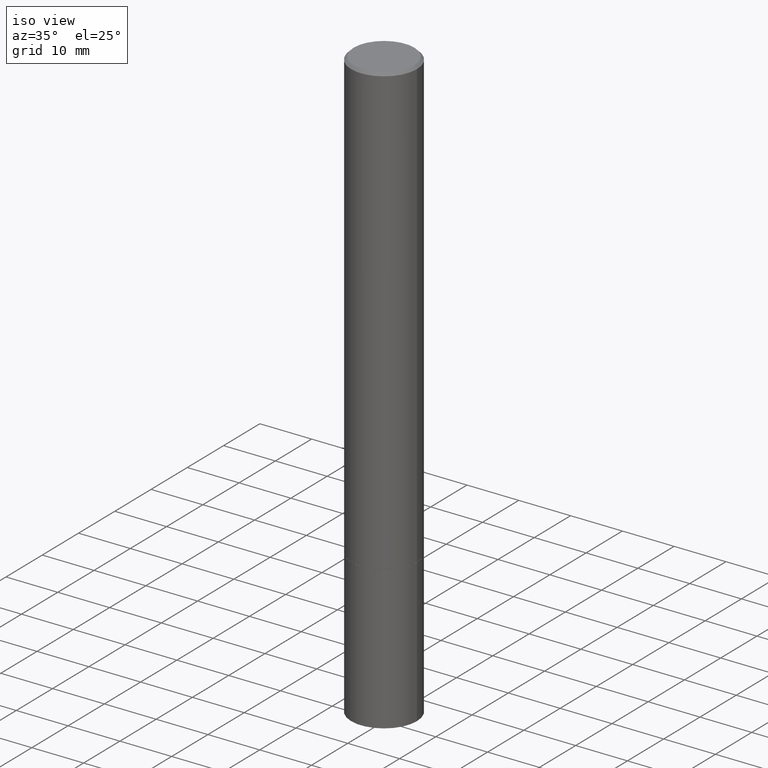
[diagram: clean part render]
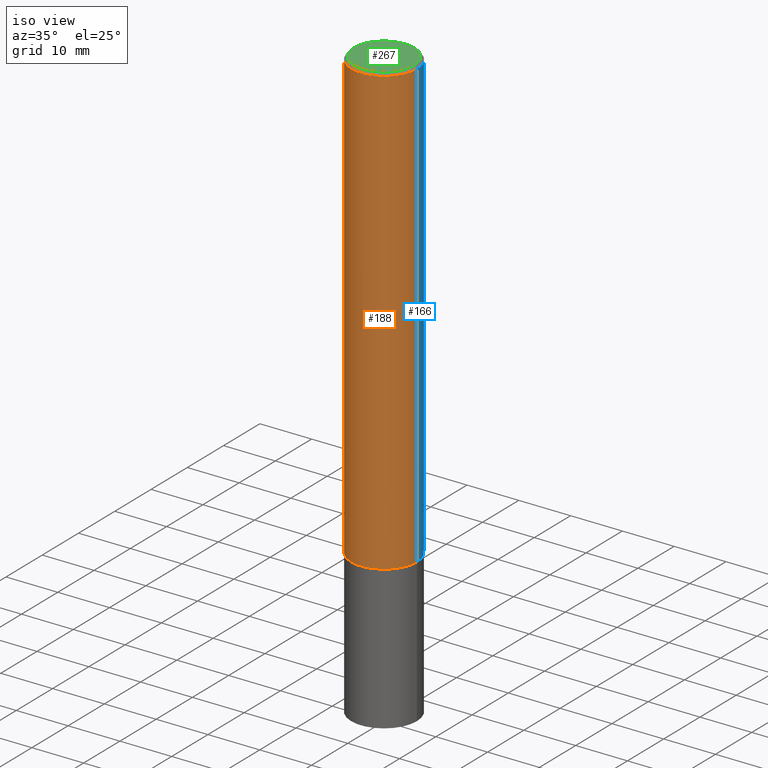
[diagram: same view with three faces highlighted in distinct colors, each labeled with its STEP entity id]
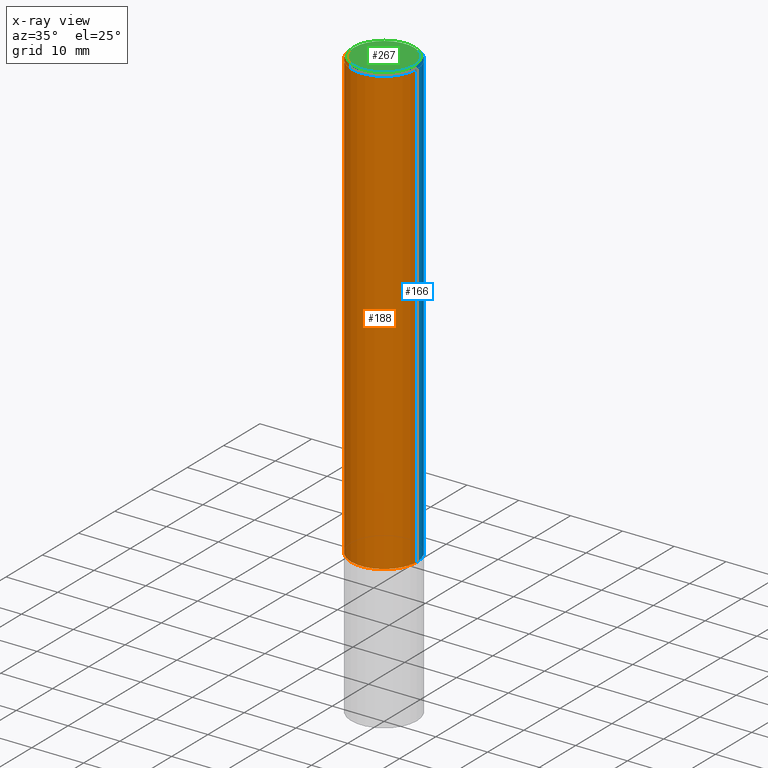
[diagram: x-ray of the same camera — body ghosted, the three highlighted faces saturated]
A machine part, iso view with three faces highlighted in distinct colors.
The next image is the same camera in x-ray (body ghosted, the three faces saturated) — at least one of them is partly hidden behind the body in this view.
Their STEP definitions:

[orange] entity #188 — the highlighted cylindrical surface (partial cylindrical patch) has radius 6.35 mm, axis along (-0, 0, 1).
#3 = VERTEX_POINT ( 'NONE', #93 ) ;
#30 = DIRECTION ( 'NONE',  ( 1.000000000000000000, -6.982962677686266711E-15, 0.000000000000000000 ) ) ;
#59 = DIRECTION ( 'NONE',  ( 1.000000000000000000, -6.982962677686270655E-15, 0.000000000000000000 ) ) ;
#62 = FACE_OUTER_BOUND ( 'NONE', #200, .T. ) ;
#93 = CARTESIAN_POINT ( 'NONE',  ( 0.2499999999999995837, -1.784954126219743033E-15, -0.02000000000000006287 ) ) ;
#114 = ORIENTED_EDGE ( 'NONE', *, *, #163, .T. ) ;
#124 = DIRECTION ( 'NONE',  ( -2.445468806185136597E-29, 3.491481338843145583E-15, 1.000000000000000000 ) ) ;
#140 = EDGE_CURVE ( 'NONE', #258, #249, #311, .T. ) ;
#147 = ORIENTED_EDGE ( 'NONE', *, *, #336, .F. ) ;
#149 = CARTESIAN_POINT ( 'NONE',  ( 8.329266753866575132E-29, -1.189198544009975405E-14, -3.406000000000000139 ) ) ;
#159 = VERTEX_POINT ( 'NONE', #226 ) ;
#162 = CIRCLE ( 'NONE', #306, 0.2500000000000000000 ) ;
#163 = EDGE_CURVE ( 'NONE', #258, #159, #162, .T. ) ;
#175 = CARTESIAN_POINT ( 'NONE',  ( 0.000000000000000000, 0.000000000000000000, 0.000000000000000000 ) ) ;
#178 = CARTESIAN_POINT ( 'NONE',  ( 4.890937612370288923E-31, -6.982962677686312563E-17, -0.02000000000000006287 ) ) ;
#188 = ADVANCED_FACE ( 'NONE', ( #62 ), #363, .T. ) ;
#200 = EDGE_LOOP ( 'NONE', ( #227, #114, #231, #147 ) ) ;
#201 = CARTESIAN_POINT ( 'NONE',  ( -0.2499999999999998057, 1.776356839400249084E-15, -1.229733772563725465E-29 ) ) ;
#202 = LINE ( 'NONE', #312, #339 ) ;
#208 = VECTOR ( 'NONE', #309, 39.37007874015748143 ) ;
#226 = CARTESIAN_POINT ( 'NONE',  ( 0.2500000000000000000, -1.363772610952132230E-14, -3.406000000000000139 ) ) ;
#227 = ORIENTED_EDGE ( 'NONE', *, *, #140, .F. ) ;
#228 = AXIS2_PLACEMENT_3D ( 'NONE', #175, #342, #283 ) ;
#231 = ORIENTED_EDGE ( 'NONE', *, *, #347, .T. ) ;
#240 = CARTESIAN_POINT ( 'NONE',  ( -0.2500000000000000555, -4.204550694038052687E-15, -3.406000000000000139 ) ) ;
#249 = VERTEX_POINT ( 'NONE', #265 ) ;
#258 = VERTEX_POINT ( 'NONE', #240 ) ;
#265 = CARTESIAN_POINT ( 'NONE',  ( -0.2499999999999995837, 1.675911042644700618E-15, -0.02000000000000006287 ) ) ;
#279 = DIRECTION ( 'NONE',  ( -2.445468806185136877E-29, 3.491481338843145188E-15, 1.000000000000000000 ) ) ;
#283 = DIRECTION ( 'NONE',  ( 1.000000000000000000, -6.982962677686266711E-15, 4.876176775795935793E-29 ) ) ;
#298 = AXIS2_PLACEMENT_3D ( 'NONE', #178, #124, #30 ) ;
#305 = DIRECTION ( 'NONE',  ( -2.445468806185136597E-29, 3.491481338843145583E-15, 1.000000000000000000 ) ) ;
#306 = AXIS2_PLACEMENT_3D ( 'NONE', #149, #305, #59 ) ;
#309 = DIRECTION ( 'NONE',  ( -2.445468806185136877E-29, 3.491481338843145188E-15, 1.000000000000000000 ) ) ;
#311 = LINE ( 'NONE', #201, #208 ) ;
#312 = CARTESIAN_POINT ( 'NONE',  ( 0.2499999999999998057, -1.745740669421565297E-15, 1.219044193948982967E-29 ) ) ;
#336 = EDGE_CURVE ( 'NONE', #249, #3, #358, .T. ) ;
#339 = VECTOR ( 'NONE', #279, 39.37007874015748143 ) ;
#342 = DIRECTION ( 'NONE',  ( -2.445468806185136597E-29, 3.491481338843145583E-15, 1.000000000000000000 ) ) ;
#347 = EDGE_CURVE ( 'NONE', #159, #3, #202, .T. ) ;
#358 = CIRCLE ( 'NONE', #298, 0.2499999999999995837 ) ;
#363 = CYLINDRICAL_SURFACE ( 'NONE', #228, 0.2499999999999998057 ) ;

[blue] entity #166 — the highlighted cylindrical surface (partial cylindrical patch) has radius 6.35 mm, axis along (-0, 0, 1).
#3 = VERTEX_POINT ( 'NONE', #93 ) ;
#17 = AXIS2_PLACEMENT_3D ( 'NONE', #211, #206, #177 ) ;
#24 = DIRECTION ( 'NONE',  ( -2.445468806185136597E-29, 3.491481338843145583E-15, 1.000000000000000000 ) ) ;
#27 = ORIENTED_EDGE ( 'NONE', *, *, #215, .F. ) ;
#29 = CIRCLE ( 'NONE', #142, 0.2500000000000000000 ) ;
#31 = ORIENTED_EDGE ( 'NONE', *, *, #321, .T. ) ;
#54 = CARTESIAN_POINT ( 'NONE',  ( 0.000000000000000000, 0.000000000000000000, 0.000000000000000000 ) ) ;
#72 = DIRECTION ( 'NONE',  ( 1.000000000000000000, -6.982962677686270655E-15, 0.000000000000000000 ) ) ;
#93 = CARTESIAN_POINT ( 'NONE',  ( 0.2499999999999995837, -1.784954126219743033E-15, -0.02000000000000006287 ) ) ;
#122 = FACE_OUTER_BOUND ( 'NONE', #195, .T. ) ;
#136 = CIRCLE ( 'NONE', #17, 0.2499999999999995837 ) ;
#140 = EDGE_CURVE ( 'NONE', #258, #249, #311, .T. ) ;
#142 = AXIS2_PLACEMENT_3D ( 'NONE', #160, #295, #72 ) ;
#146 = DIRECTION ( 'NONE',  ( 1.000000000000000000, -6.982962677686266711E-15, 4.876176775795935793E-29 ) ) ;
#159 = VERTEX_POINT ( 'NONE', #226 ) ;
#160 = CARTESIAN_POINT ( 'NONE',  ( 8.329266753866575132E-29, -1.189198544009975405E-14, -3.406000000000000139 ) ) ;
#166 = ADVANCED_FACE ( 'NONE', ( #122 ), #281, .T. ) ;
#177 = DIRECTION ( 'NONE',  ( 1.000000000000000000, -6.982962677686266711E-15, 0.000000000000000000 ) ) ;
#195 = EDGE_LOOP ( 'NONE', ( #31, #282, #27, #340 ) ) ;
#201 = CARTESIAN_POINT ( 'NONE',  ( -0.2499999999999998057, 1.776356839400249084E-15, -1.229733772563725465E-29 ) ) ;
#202 = LINE ( 'NONE', #312, #339 ) ;
#206 = DIRECTION ( 'NONE',  ( -2.445468806185136597E-29, 3.491481338843145583E-15, 1.000000000000000000 ) ) ;
#208 = VECTOR ( 'NONE', #309, 39.37007874015748143 ) ;
#211 = CARTESIAN_POINT ( 'NONE',  ( 4.890937612370288923E-31, -6.982962677686312563E-17, -0.02000000000000006287 ) ) ;
#215 = EDGE_CURVE ( 'NONE', #3, #249, #136, .T. ) ;
#226 = CARTESIAN_POINT ( 'NONE',  ( 0.2500000000000000000, -1.363772610952132230E-14, -3.406000000000000139 ) ) ;
#240 = CARTESIAN_POINT ( 'NONE',  ( -0.2500000000000000555, -4.204550694038052687E-15, -3.406000000000000139 ) ) ;
#249 = VERTEX_POINT ( 'NONE', #265 ) ;
#258 = VERTEX_POINT ( 'NONE', #240 ) ;
#265 = CARTESIAN_POINT ( 'NONE',  ( -0.2499999999999995837, 1.675911042644700618E-15, -0.02000000000000006287 ) ) ;
#279 = DIRECTION ( 'NONE',  ( -2.445468806185136877E-29, 3.491481338843145188E-15, 1.000000000000000000 ) ) ;
#281 = CYLINDRICAL_SURFACE ( 'NONE', #285, 0.2499999999999998057 ) ;
#282 = ORIENTED_EDGE ( 'NONE', *, *, #140, .T. ) ;
#285 = AXIS2_PLACEMENT_3D ( 'NONE', #54, #24, #146 ) ;
#295 = DIRECTION ( 'NONE',  ( -2.445468806185136597E-29, 3.491481338843145583E-15, 1.000000000000000000 ) ) ;
#309 = DIRECTION ( 'NONE',  ( -2.445468806185136877E-29, 3.491481338843145188E-15, 1.000000000000000000 ) ) ;
#311 = LINE ( 'NONE', #201, #208 ) ;
#312 = CARTESIAN_POINT ( 'NONE',  ( 0.2499999999999998057, -1.745740669421565297E-15, 1.219044193948982967E-29 ) ) ;
#321 = EDGE_CURVE ( 'NONE', #159, #258, #29, .T. ) ;
#339 = VECTOR ( 'NONE', #279, 39.37007874015748143 ) ;
#340 = ORIENTED_EDGE ( 'NONE', *, *, #347, .F. ) ;
#347 = EDGE_CURVE ( 'NONE', #159, #3, #202, .T. ) ;

[green] entity #267 — the highlighted planar face has unit normal (0, -0, -1).
#13 = DIRECTION ( 'NONE',  ( 1.000000000000000000, -6.982962677686266711E-15, 4.876225828469317850E-29 ) ) ;
#23 = CARTESIAN_POINT ( 'NONE',  ( -1.043851414335219820E-46, 1.490343170380447200E-32, 4.268512490100411279E-18 ) ) ;
#37 = AXIS2_PLACEMENT_3D ( 'NONE', #335, #242, #13 ) ;
#39 = CARTESIAN_POINT ( 'NONE',  ( 1.606081415867838109E-15, 0.2299999999999995659, -8.009064516888717994E-16 ) ) ;
#81 = EDGE_CURVE ( 'NONE', #91, #209, #155, .T. ) ;
#85 = AXIS2_PLACEMENT_3D ( 'NONE', #23, #115, #235 ) ;
#89 = CARTESIAN_POINT ( 'NONE',  ( 0.2299999999999995659, -1.681434332853596250E-15, 4.268512490111905999E-18 ) ) ;
#91 = VERTEX_POINT ( 'NONE', #192 ) ;
#95 = DIRECTION ( 'NONE',  ( -1.000000000000000000, 6.982962677686265922E-15, -4.876176775795935793E-29 ) ) ;
#115 = DIRECTION ( 'NONE',  ( -2.445468806185136597E-29, 3.491481338843145583E-15, 1.000000000000000000 ) ) ;
#131 = ORIENTED_EDGE ( 'NONE', *, *, #138, .T. ) ;
#138 = EDGE_CURVE ( 'NONE', #209, #91, #190, .T. ) ;
#155 = CIRCLE ( 'NONE', #37, 0.2299999999999995659 ) ;
#190 = CIRCLE ( 'NONE', #85, 0.2299999999999995659 ) ;
#192 = CARTESIAN_POINT ( 'NONE',  ( -0.2299999999999995659, 1.640996229256269561E-15, 4.268512490089056766E-18 ) ) ;
#193 = AXIS2_PLACEMENT_3D ( 'NONE', #39, #327, #95 ) ;
#209 = VERTEX_POINT ( 'NONE', #89 ) ;
#235 = DIRECTION ( 'NONE',  ( 1.000000000000000000, -6.982962677686266711E-15, 4.876225828469317850E-29 ) ) ;
#242 = DIRECTION ( 'NONE',  ( -2.445468806185136597E-29, 3.491481338843145583E-15, 1.000000000000000000 ) ) ;
#244 = EDGE_LOOP ( 'NONE', ( #274, #131 ) ) ;
#267 = ADVANCED_FACE ( 'NONE', ( #322 ), #349, .F. ) ;
#274 = ORIENTED_EDGE ( 'NONE', *, *, #81, .T. ) ;
#322 = FACE_OUTER_BOUND ( 'NONE', #244, .T. ) ;
#327 = DIRECTION ( 'NONE',  ( 2.438088387897960049E-29, -3.491481338843145188E-15, -1.000000000000000000 ) ) ;
#335 = CARTESIAN_POINT ( 'NONE',  ( -1.043851414335219820E-46, 1.490343170380447200E-32, 4.268512490100411279E-18 ) ) ;
#349 = PLANE ( 'NONE',  #193 ) ;